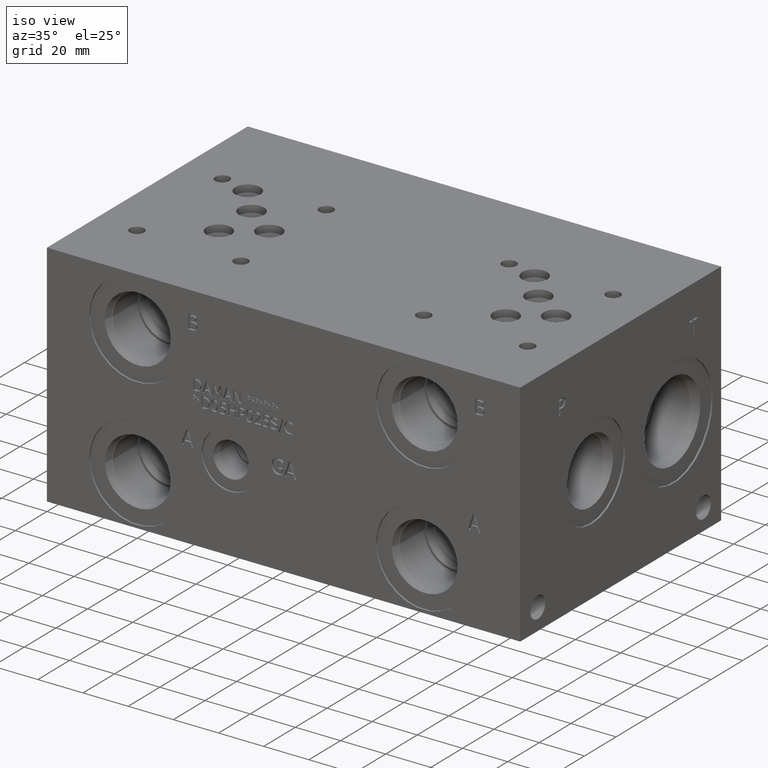
[diagram: clean part render]
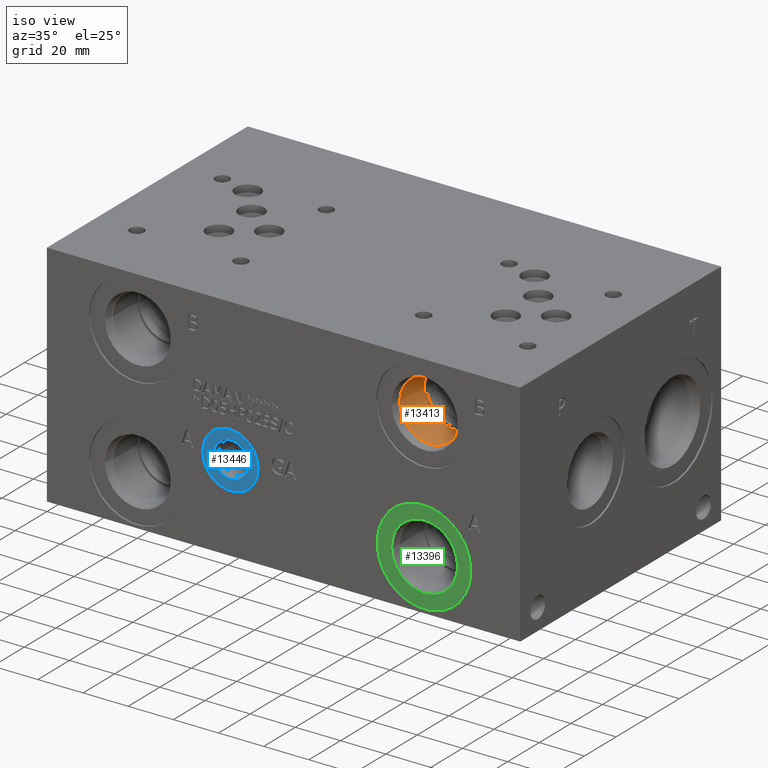
[diagram: same view with three faces highlighted in distinct colors, each labeled with its STEP entity id]
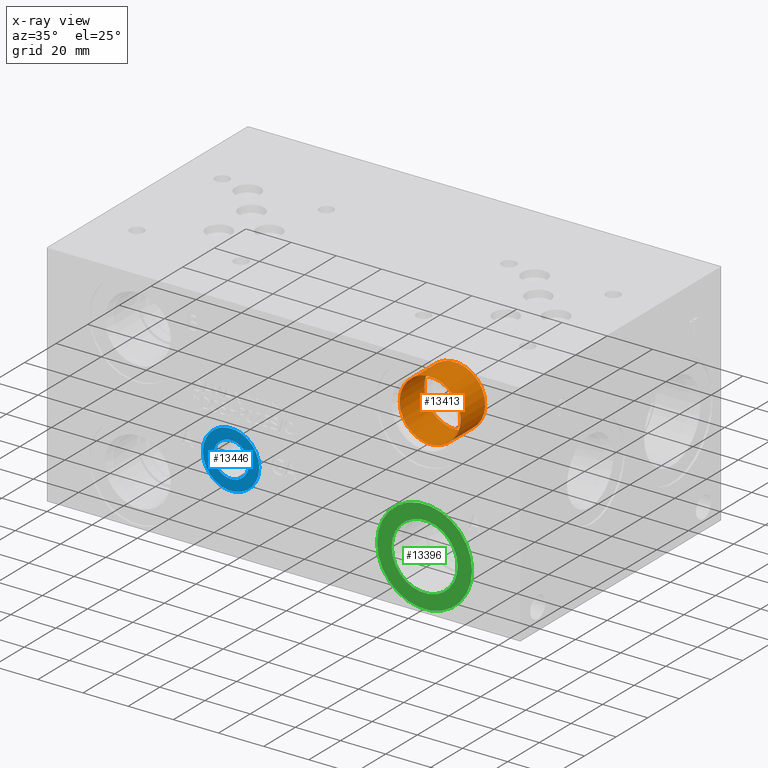
[diagram: x-ray of the same camera — body ghosted, the three highlighted faces saturated]
A machine part, iso view with three faces highlighted in distinct colors.
The next image is the same camera in x-ray (body ghosted, the three faces saturated) — at least one of them is partly hidden behind the body in this view.
Their STEP definitions:

[orange] entity #13413 — the highlighted cylindrical surface (bore or boss wall) has radius 13.5001 mm, axis along (0, -1, 0).
#50=CYLINDRICAL_SURFACE('',#14101,13.5001);
#297=CIRCLE('',#14078,13.5001);
#309=CIRCLE('',#14098,13.5001);
#310=CIRCLE('',#14099,13.5001);
#1558=FACE_OUTER_BOUND('',#2331,.T.);
#2331=EDGE_LOOP('',(#11606,#11607,#11608,#11609,#11610));
#3593=LINE('',#22861,#4800);
#4800=VECTOR('',#16640,13.5001);
#6317=VERTEX_POINT('',#22811);
#6332=VERTEX_POINT('',#22854);
#6333=VERTEX_POINT('',#22855);
#8124=EDGE_CURVE('',#6317,#6317,#297,.T.);
#8143=EDGE_CURVE('',#6332,#6333,#309,.T.);
#8144=EDGE_CURVE('',#6333,#6332,#310,.T.);
#8146=EDGE_CURVE('',#6317,#6333,#3593,.T.);
#11606=ORIENTED_EDGE('',*,*,#8124,.T.);
#11607=ORIENTED_EDGE('',*,*,#8146,.T.);
#11608=ORIENTED_EDGE('',*,*,#8143,.F.);
#11609=ORIENTED_EDGE('',*,*,#8144,.F.);
#11610=ORIENTED_EDGE('',*,*,#8146,.F.);
#13413=ADVANCED_FACE('',(#1558),#50,.F.);
#14078=AXIS2_PLACEMENT_3D('',#22813,#16585,#16586);
#14098=AXIS2_PLACEMENT_3D('',#22856,#16632,#16633);
#14099=AXIS2_PLACEMENT_3D('',#22857,#16634,#16635);
#14101=AXIS2_PLACEMENT_3D('',#22860,#16638,#16639);
#16585=DIRECTION('center_axis',(0.,-1.,0.));
#16586=DIRECTION('ref_axis',(1.,0.,0.));
#16632=DIRECTION('center_axis',(0.,-1.,0.));
#16633=DIRECTION('ref_axis',(1.,0.,0.));
#16634=DIRECTION('center_axis',(0.,-1.,0.));
#16635=DIRECTION('ref_axis',(1.,0.,0.));
#16638=DIRECTION('center_axis',(0.,-1.,0.));
#16639=DIRECTION('ref_axis',(1.,0.,0.));
#16640=DIRECTION('',(0.,1.,0.));
#22811=CARTESIAN_POINT('',(153.1747,4.27990000000001,79.375));
#22813=CARTESIAN_POINT('Origin',(166.6748,4.27990000000001,79.375));
#22854=CARTESIAN_POINT('',(180.1749,19.8374,79.375));
#22855=CARTESIAN_POINT('',(153.1747,19.8374,79.375));
#22856=CARTESIAN_POINT('Origin',(166.6748,19.8374,79.375));
#22857=CARTESIAN_POINT('Origin',(166.6748,19.8374,79.375));
#22860=CARTESIAN_POINT('Origin',(166.6748,9.9187,79.375));
#22861=CARTESIAN_POINT('',(153.1747,9.9187,79.375));

[blue] entity #13446 — the highlighted planar face has unit normal (0, 1, 0).
#357=CIRCLE('',#14179,12.5095);
#358=CIRCLE('',#14180,12.5095);
#359=CIRCLE('',#14182,7.79780000000001);
#360=CIRCLE('',#14183,7.79780000000001);
#560=FACE_BOUND('',#2371,.T.);
#947=PLANE('',#14181);
#1591=FACE_OUTER_BOUND('',#2370,.T.);
#2370=EDGE_LOOP('',(#11766,#11767));
#2371=EDGE_LOOP('',(#11768,#11769));
#6382=VERTEX_POINT('',#23011);
#6383=VERTEX_POINT('',#23013);
#6384=VERTEX_POINT('',#23017);
#6385=VERTEX_POINT('',#23018);
#8218=EDGE_CURVE('',#6382,#6383,#357,.T.);
#8219=EDGE_CURVE('',#6383,#6382,#358,.T.);
#8220=EDGE_CURVE('',#6384,#6385,#359,.T.);
#8221=EDGE_CURVE('',#6385,#6384,#360,.T.);
#11766=ORIENTED_EDGE('',*,*,#8219,.F.);
#11767=ORIENTED_EDGE('',*,*,#8218,.F.);
#11768=ORIENTED_EDGE('',*,*,#8220,.T.);
#11769=ORIENTED_EDGE('',*,*,#8221,.T.);
#13446=ADVANCED_FACE('',(#1591,#560),#947,.F.);
#14179=AXIS2_PLACEMENT_3D('',#23014,#16821,#16822);
#14180=AXIS2_PLACEMENT_3D('',#23015,#16823,#16824);
#14181=AXIS2_PLACEMENT_3D('',#23016,#16825,#16826);
#14182=AXIS2_PLACEMENT_3D('',#23019,#16827,#16828);
#14183=AXIS2_PLACEMENT_3D('',#23020,#16829,#16830);
#16821=DIRECTION('center_axis',(0.,1.,0.));
#16822=DIRECTION('ref_axis',(1.,0.,0.));
#16823=DIRECTION('center_axis',(0.,1.,0.));
#16824=DIRECTION('ref_axis',(1.,0.,0.));
#16825=DIRECTION('center_axis',(0.,1.,0.));
#16826=DIRECTION('ref_axis',(0.,0.,1.));
#16827=DIRECTION('center_axis',(0.,1.,0.));
#16828=DIRECTION('ref_axis',(1.,0.,0.));
#16829=DIRECTION('center_axis',(0.,1.,0.));
#16830=DIRECTION('ref_axis',(1.,0.,0.));
#23011=CARTESIAN_POINT('',(68.4657,0.7874,38.1));
#23013=CARTESIAN_POINT('',(93.4847,0.7874,38.1));
#23014=CARTESIAN_POINT('Origin',(80.9752,0.7874,38.1));
#23015=CARTESIAN_POINT('Origin',(80.9752,0.7874,38.1));
#23016=CARTESIAN_POINT('Origin',(88.773,0.7874,38.1));
#23017=CARTESIAN_POINT('',(88.773,0.7874,38.1));
#23018=CARTESIAN_POINT('',(73.1774,0.787400000000002,38.1));
#23019=CARTESIAN_POINT('Origin',(80.9752,0.7874,38.1));
#23020=CARTESIAN_POINT('Origin',(80.9752,0.7874,38.1));

[green] entity #13396 — the highlighted planar face has unit normal (0, 1, 0).
#280=CIRCLE('',#14052,21.0185);
#281=CIRCLE('',#14053,21.0185);
#282=CIRCLE('',#14055,14.5923);
#283=CIRCLE('',#14056,14.5923);
#551=FACE_BOUND('',#2312,.T.);
#938=PLANE('',#14054);
#1541=FACE_OUTER_BOUND('',#2311,.T.);
#2311=EDGE_LOOP('',(#11523,#11524));
#2312=EDGE_LOOP('',(#11525,#11526));
#6300=VERTEX_POINT('',#22761);
#6301=VERTEX_POINT('',#22763);
#6302=VERTEX_POINT('',#22767);
#6303=VERTEX_POINT('',#22768);
#8100=EDGE_CURVE('',#6300,#6301,#280,.T.);
#8101=EDGE_CURVE('',#6301,#6300,#281,.T.);
#8102=EDGE_CURVE('',#6302,#6303,#282,.T.);
#8103=EDGE_CURVE('',#6303,#6302,#283,.T.);
#11523=ORIENTED_EDGE('',*,*,#8101,.F.);
#11524=ORIENTED_EDGE('',*,*,#8100,.F.);
#11525=ORIENTED_EDGE('',*,*,#8102,.T.);
#11526=ORIENTED_EDGE('',*,*,#8103,.T.);
#13396=ADVANCED_FACE('',(#1541,#551),#938,.F.);
#14052=AXIS2_PLACEMENT_3D('',#22764,#16526,#16527);
#14053=AXIS2_PLACEMENT_3D('',#22765,#16528,#16529);
#14054=AXIS2_PLACEMENT_3D('',#22766,#16530,#16531);
#14055=AXIS2_PLACEMENT_3D('',#22769,#16532,#16533);
#14056=AXIS2_PLACEMENT_3D('',#22770,#16534,#16535);
#16526=DIRECTION('center_axis',(0.,1.,0.));
#16527=DIRECTION('ref_axis',(1.,0.,0.));
#16528=DIRECTION('center_axis',(0.,1.,0.));
#16529=DIRECTION('ref_axis',(1.,0.,0.));
#16530=DIRECTION('center_axis',(0.,1.,0.));
#16531=DIRECTION('ref_axis',(0.,0.,1.));
#16532=DIRECTION('center_axis',(0.,1.,0.));
#16533=DIRECTION('ref_axis',(1.,0.,0.));
#16534=DIRECTION('center_axis',(0.,1.,0.));
#16535=DIRECTION('ref_axis',(1.,0.,0.));
#22761=CARTESIAN_POINT('',(145.6563,0.7874,22.225));
#22763=CARTESIAN_POINT('',(187.6933,0.7874,22.225));
#22764=CARTESIAN_POINT('Origin',(166.6748,0.7874,22.225));
#22765=CARTESIAN_POINT('Origin',(166.6748,0.7874,22.225));
#22766=CARTESIAN_POINT('Origin',(181.2671,0.7874,22.225));
#22767=CARTESIAN_POINT('',(181.2671,0.7874,22.225));
#22768=CARTESIAN_POINT('',(152.0825,0.787399999999995,22.225));
#22769=CARTESIAN_POINT('Origin',(166.6748,0.7874,22.225));
#22770=CARTESIAN_POINT('Origin',(166.6748,0.7874,22.225));